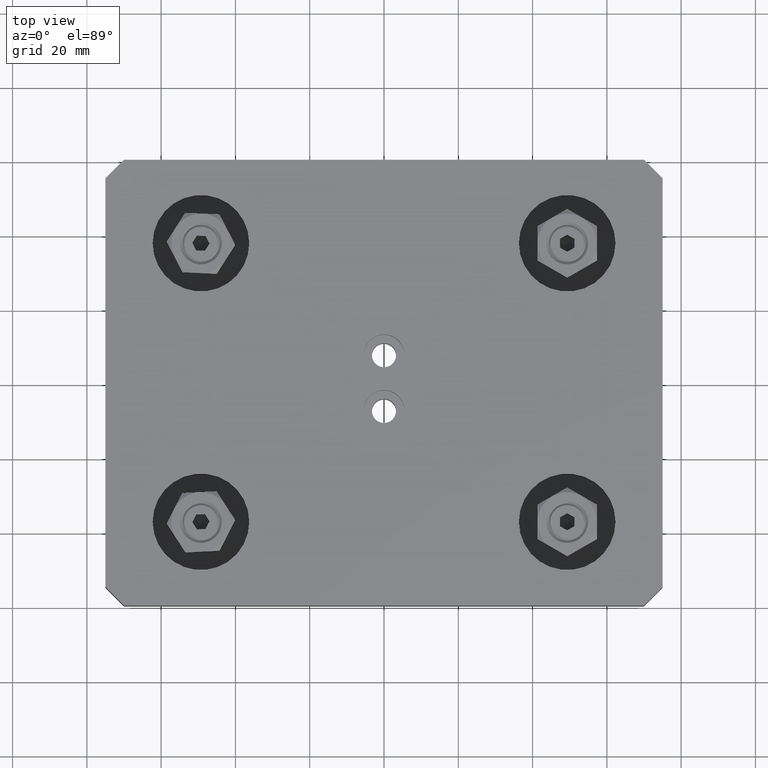
[diagram: clean part render]
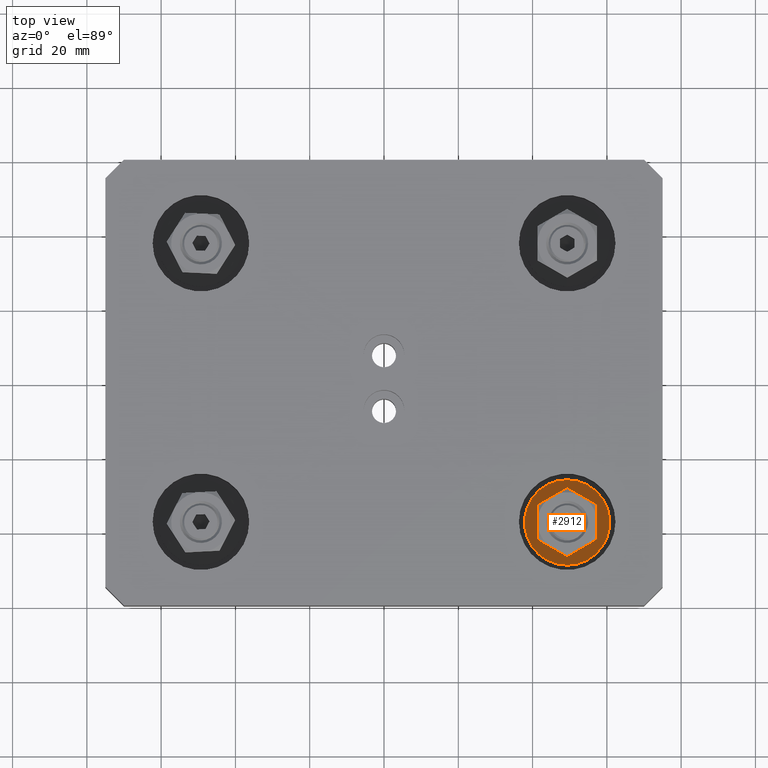
[diagram: same view with one face highlighted and labeled with its STEP entity id]
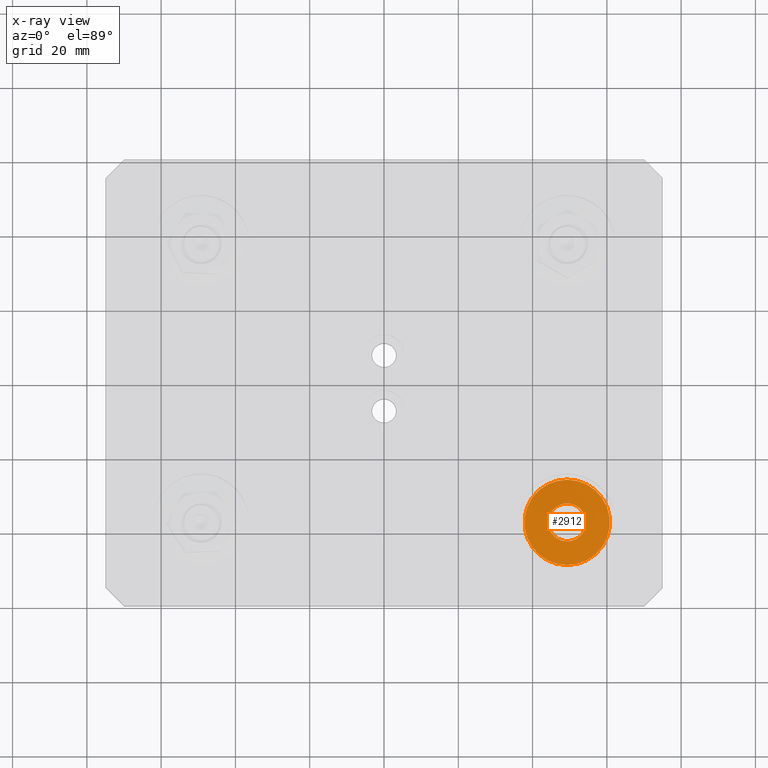
[diagram: x-ray of the same camera — body ghosted, the highlighted face saturated]
A machine part, top view. The second image highlights one B-rep face of the part: STEP entity #2912.
The next image is the same camera in x-ray: the body ghosted, the highlighted face saturated — about 0% of this face is hidden behind the body in this view.
In plain terms, the highlighted conical surface has half-angle 83.758 deg.
Its self-contained STEP definition (entity closure, byte-faithful):
#109=CONICAL_SURFACE('',#3436,8.3,1.46185436980503);
#399=CIRCLE('',#3437,11.5);
#400=CIRCLE('',#3438,5.1);
#573=FACE_OUTER_BOUND('',#792,.T.);
#792=EDGE_LOOP('',(#2544,#2545,#2546,#2547));
#1021=LINE('',#5139,#1234);
#1234=VECTOR('',#4293,8.3);
#1459=VERTEX_POINT('',#5136);
#1460=VERTEX_POINT('',#5138);
#1823=EDGE_CURVE('',#1459,#1459,#399,.T.);
#1824=EDGE_CURVE('',#1459,#1460,#1021,.T.);
#1825=EDGE_CURVE('',#1460,#1460,#400,.T.);
#2544=ORIENTED_EDGE('',*,*,#1823,.F.);
#2545=ORIENTED_EDGE('',*,*,#1824,.T.);
#2546=ORIENTED_EDGE('',*,*,#1825,.T.);
#2547=ORIENTED_EDGE('',*,*,#1824,.F.);
#2912=ADVANCED_FACE('',(#573),#109,.T.);
#3436=AXIS2_PLACEMENT_3D('',#5135,#4289,#4290);
#3437=AXIS2_PLACEMENT_3D('',#5137,#4291,#4292);
#3438=AXIS2_PLACEMENT_3D('',#5140,#4294,#4295);
#4289=DIRECTION('center_axis',(0.,-1.,0.));
#4290=DIRECTION('ref_axis',(1.,0.,0.));
#4291=DIRECTION('center_axis',(0.,-1.,0.));
#4292=DIRECTION('ref_axis',(1.,0.,0.));
#4293=DIRECTION('',(0.994071691754376,0.108726591285635,1.21738671542999E-16));
#4294=DIRECTION('center_axis',(0.,-1.,0.));
#4295=DIRECTION('ref_axis',(1.,0.,0.));
#5135=CARTESIAN_POINT('Origin',(0.,1.35,0.));
#5136=CARTESIAN_POINT('',(-11.5,1.,-1.40834381901946E-15));
#5137=CARTESIAN_POINT('Origin',(0.,1.,0.));
#5138=CARTESIAN_POINT('',(-5.1,1.7,-6.2456986756515E-16));
#5139=CARTESIAN_POINT('',(-8.3,1.35,-1.0164568432923E-15));
#5140=CARTESIAN_POINT('Origin',(0.,1.7,0.));